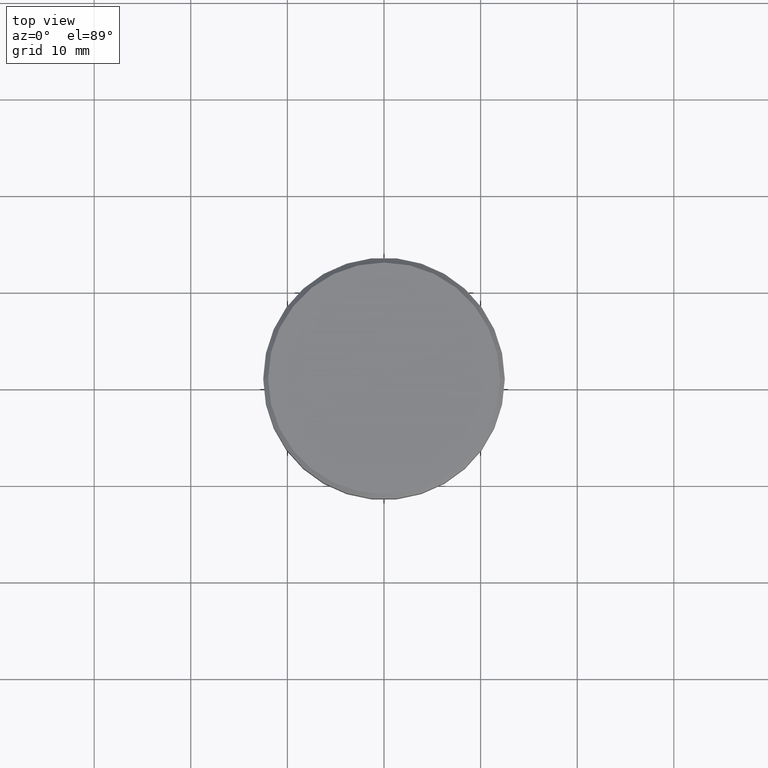
[diagram: clean part render]
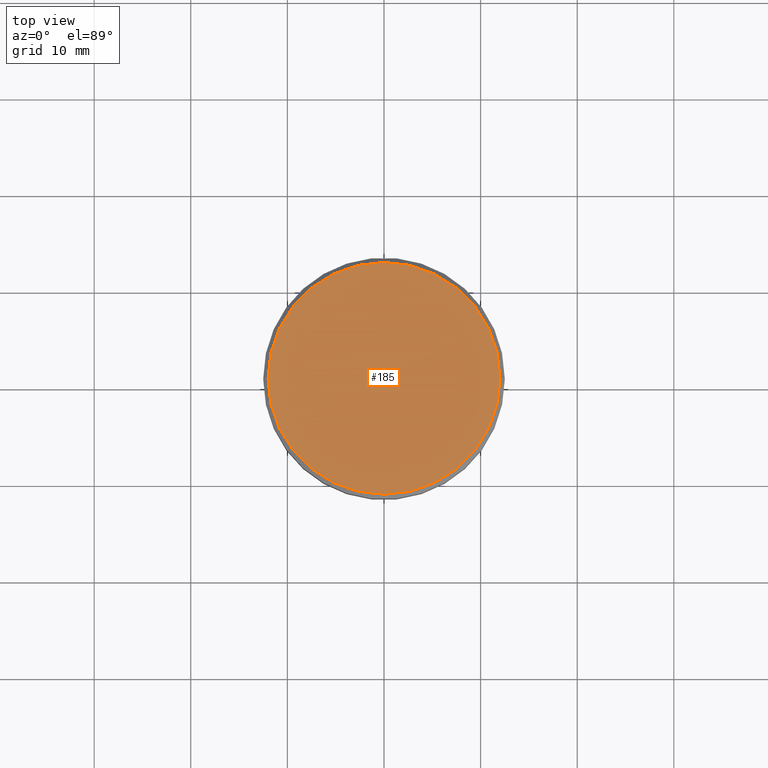
[diagram: same view with one face highlighted and labeled with its STEP entity id]
A machine part, top view. The second image highlights one B-rep face of the part: STEP entity #185.
In plain terms, the highlighted planar face has unit normal (0, -0, 1).
Its self-contained STEP definition (entity closure, byte-faithful):
#3 = DIRECTION ( 'NONE',  ( -0.000000000000000000, -0.000000000000000000, 1.000000000000000000 ) ) ;
#44 = CARTESIAN_POINT ( 'NONE',  ( 0.000000000000000000, 0.000000000000000000, 0.000000000000000000 ) ) ;
#80 = FACE_OUTER_BOUND ( 'NONE', #352, .T. ) ;
#83 = CARTESIAN_POINT ( 'NONE',  ( 0.000000000000000000, 0.000000000000000000, 0.000000000000000000 ) ) ;
#93 = CARTESIAN_POINT ( 'NONE',  ( 11.99999999999998934, 1.500192328955507143E-15, 0.000000000000000000 ) ) ;
#138 = VERTEX_POINT ( 'NONE', #93 ) ;
#159 = CARTESIAN_POINT ( 'NONE',  ( -11.99999999999998934, 0.000000000000000000, 0.000000000000000000 ) ) ;
#185 = ADVANCED_FACE ( 'NONE', ( #80 ), #1089, .T. ) ;
#201 = ORIENTED_EDGE ( 'NONE', *, *, #432, .T. ) ;
#213 = ORIENTED_EDGE ( 'NONE', *, *, #697, .T. ) ;
#269 = CARTESIAN_POINT ( 'NONE',  ( 0.000000000000000000, 0.000000000000000000, 0.000000000000000000 ) ) ;
#302 = CIRCLE ( 'NONE', #536, 11.99999999999998934 ) ;
#351 = DIRECTION ( 'NONE',  ( 1.000000000000000000, 0.000000000000000000, 0.000000000000000000 ) ) ;
#352 = EDGE_LOOP ( 'NONE', ( #201, #213 ) ) ;
#355 = DIRECTION ( 'NONE',  ( 1.000000000000000000, 0.000000000000000000, 0.000000000000000000 ) ) ;
#432 = EDGE_CURVE ( 'NONE', #628, #138, #302, .T. ) ;
#536 = AXIS2_PLACEMENT_3D ( 'NONE', #83, #3, #355 ) ;
#619 = AXIS2_PLACEMENT_3D ( 'NONE', #269, #819, #351 ) ;
#628 = VERTEX_POINT ( 'NONE', #159 ) ;
#696 = DIRECTION ( 'NONE',  ( 1.000000000000000000, 0.000000000000000000, 0.000000000000000000 ) ) ;
#697 = EDGE_CURVE ( 'NONE', #138, #628, #928, .T. ) ;
#819 = DIRECTION ( 'NONE',  ( 0.000000000000000000, -0.000000000000000000, 1.000000000000000000 ) ) ;
#850 = AXIS2_PLACEMENT_3D ( 'NONE', #44, #962, #696 ) ;
#928 = CIRCLE ( 'NONE', #850, 11.99999999999998934 ) ;
#962 = DIRECTION ( 'NONE',  ( -0.000000000000000000, -0.000000000000000000, 1.000000000000000000 ) ) ;
#1089 = PLANE ( 'NONE',  #619 ) ;